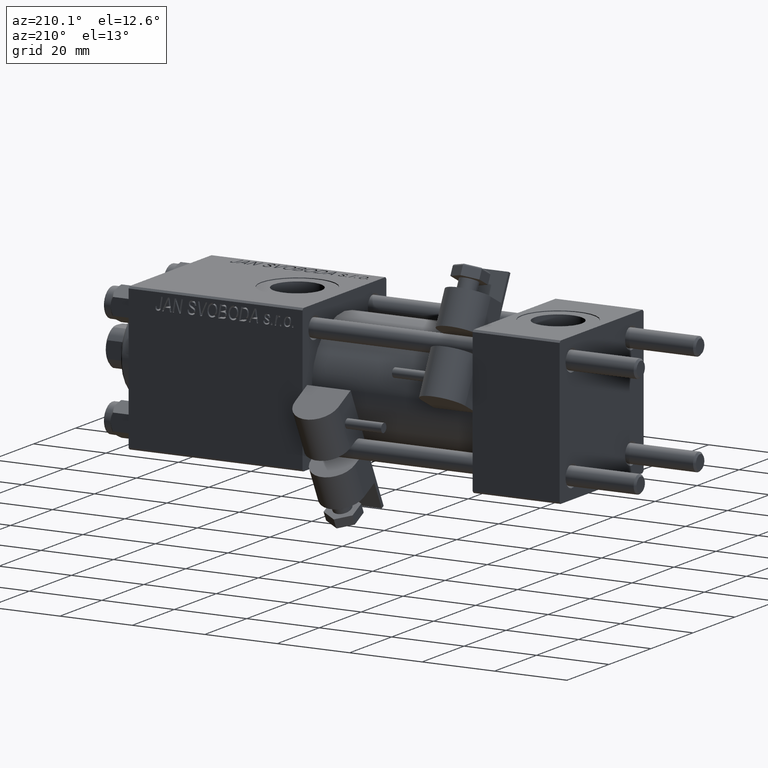
[diagram: clean part render]
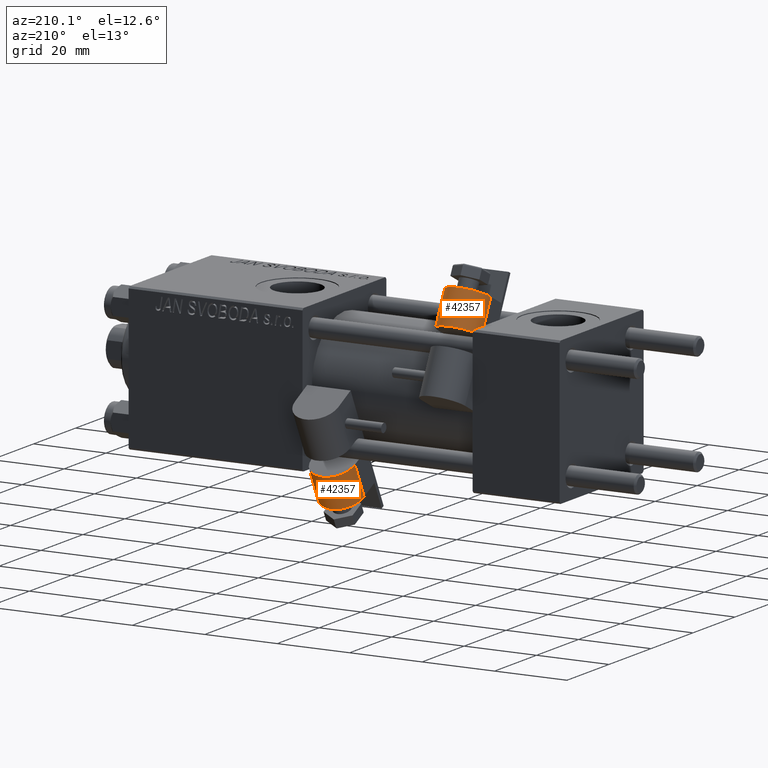
[diagram: same view with one multi-face feature highlighted, each face labeled with its STEP entity id]
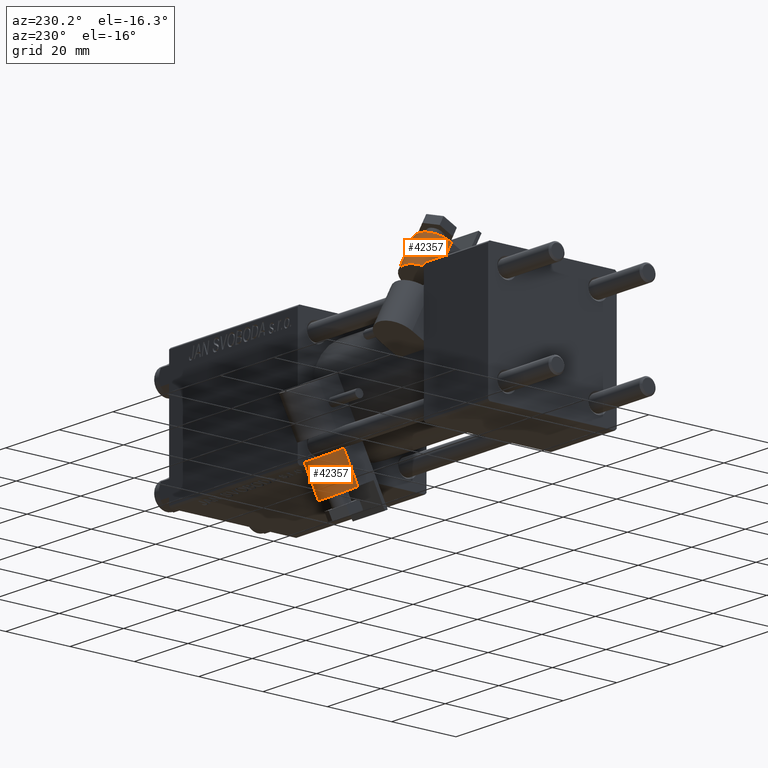
[diagram: same view with one multi-face feature highlighted, each face labeled with its STEP entity id]
A machine part, auxiliary view. The highlighted faces form ONE feature: a constant-radius fillet chain: 2 tangent blend faces with common blend radius 6 mm. The faces share edges in the B-rep.
A second angle (auxiliary view) of the same feature is appended — it is thin or edge-on in the first view.
Their STEP definitions:
[1] entity #42357 (Cylinder):
#662 = CARTESIAN_POINT ( 'NONE',  ( 9.740000000000000213, 6.500000000000000000, -5.999999999999997335 ) ) ;
#1658 = CARTESIAN_POINT ( 'NONE',  ( 0.000000000000000000, 6.500000000000000000, -5.999999999999997335 ) ) ;
#4240 = CARTESIAN_POINT ( 'NONE',  ( 9.740000000000000213, 6.499999999999999112, 1.734723475976807094E-15 ) ) ;
#5421 = ORIENTED_EDGE ( 'NONE', *, *, #31918, .T. ) ;
#6060 = EDGE_CURVE ( 'NONE', #19384, #6879, #48419, .T. ) ;
#6114 = CIRCLE ( 'NONE', #18449, 5.999999999999998224 ) ;
#6855 = AXIS2_PLACEMENT_3D ( 'NONE', #4240, #43836, #19440 ) ;
#6879 = VERTEX_POINT ( 'NONE', #28106 ) ;
#8356 = EDGE_CURVE ( 'NONE', #28830, #6879, #6114, .T. ) ;
#13187 = CARTESIAN_POINT ( 'NONE',  ( 9.740000000000000213, 6.500000000000000000, -5.999999999999997335 ) ) ;
#13515 = CARTESIAN_POINT ( 'NONE',  ( 9.740000000000000213, 6.499999999999999112, 1.734723475976807094E-15 ) ) ;
#15070 = VECTOR ( 'NONE', #25259, 1000.000000000000000 ) ;
#15282 = DIRECTION ( 'NONE',  ( 1.000000000000000000, 0.000000000000000000, 0.000000000000000000 ) ) ;
#18449 = AXIS2_PLACEMENT_3D ( 'NONE', #42778, #15282, #27607 ) ;
#19384 = VERTEX_POINT ( 'NONE', #23298 ) ;
#19440 = DIRECTION ( 'NONE',  ( 0.000000000000000000, 0.000000000000000000, -1.000000000000000000 ) ) ;
#21876 = ORIENTED_EDGE ( 'NONE', *, *, #38406, .F. ) ;
#23298 = CARTESIAN_POINT ( 'NONE',  ( 9.740000000000000213, 6.499999999999998224, 6.000000000000000000 ) ) ;
#25259 = DIRECTION ( 'NONE',  ( -1.000000000000000000, -0.000000000000000000, -0.000000000000000000 ) ) ;
#25570 = DIRECTION ( 'NONE',  ( -1.000000000000000000, -0.000000000000000000, -0.000000000000000000 ) ) ;
#26075 = CYLINDRICAL_SURFACE ( 'NONE', #28390, 5.999999999999998224 ) ;
#27607 = DIRECTION ( 'NONE',  ( 0.000000000000000000, 0.000000000000000000, -1.000000000000000000 ) ) ;
#27693 = ORIENTED_EDGE ( 'NONE', *, *, #6060, .F. ) ;
#28106 = CARTESIAN_POINT ( 'NONE',  ( 0.000000000000000000, 6.499999999999998224, 6.000000000000000000 ) ) ;
#28390 = AXIS2_PLACEMENT_3D ( 'NONE', #13515, #25570, #37133 ) ;
#28830 = VERTEX_POINT ( 'NONE', #1658 ) ;
#31918 = EDGE_CURVE ( 'NONE', #36802, #28830, #36893, .T. ) ;
#34507 = EDGE_LOOP ( 'NONE', ( #45191, #27693, #21876, #5421 ) ) ;
#36802 = VERTEX_POINT ( 'NONE', #13187 ) ;
#36893 = LINE ( 'NONE', #662, #38669 ) ;
#37133 = DIRECTION ( 'NONE',  ( 0.000000000000000000, 0.000000000000000000, 1.000000000000000000 ) ) ;
#38406 = EDGE_CURVE ( 'NONE', #36802, #19384, #42980, .T. ) ;
#38669 = VECTOR ( 'NONE', #43845, 1000.000000000000000 ) ;
#40439 = CARTESIAN_POINT ( 'NONE',  ( 9.740000000000000213, 6.499999999999998224, 6.000000000000000000 ) ) ;
#41756 = FACE_OUTER_BOUND ( 'NONE', #34507, .T. ) ;
#42357 = ADVANCED_FACE ( 'NONE', ( #41756 ), #26075, .T. ) ;
#42778 = CARTESIAN_POINT ( 'NONE',  ( 0.000000000000000000, 6.499999999999999112, 1.734723475976807094E-15 ) ) ;
#42980 = CIRCLE ( 'NONE', #6855, 5.999999999999998224 ) ;
#43836 = DIRECTION ( 'NONE',  ( 1.000000000000000000, 0.000000000000000000, 0.000000000000000000 ) ) ;
#43845 = DIRECTION ( 'NONE',  ( -1.000000000000000000, -0.000000000000000000, -0.000000000000000000 ) ) ;
#45191 = ORIENTED_EDGE ( 'NONE', *, *, #8356, .T. ) ;
#48419 = LINE ( 'NONE', #40439, #15070 ) ;
[2] entity #42357 (Cylinder):
#662 = CARTESIAN_POINT ( 'NONE',  ( 9.740000000000000213, 6.500000000000000000, -5.999999999999997335 ) ) ;
#1658 = CARTESIAN_POINT ( 'NONE',  ( 0.000000000000000000, 6.500000000000000000, -5.999999999999997335 ) ) ;
#4240 = CARTESIAN_POINT ( 'NONE',  ( 9.740000000000000213, 6.499999999999999112, 1.734723475976807094E-15 ) ) ;
#5421 = ORIENTED_EDGE ( 'NONE', *, *, #31918, .T. ) ;
#6060 = EDGE_CURVE ( 'NONE', #19384, #6879, #48419, .T. ) ;
#6114 = CIRCLE ( 'NONE', #18449, 5.999999999999998224 ) ;
#6855 = AXIS2_PLACEMENT_3D ( 'NONE', #4240, #43836, #19440 ) ;
#6879 = VERTEX_POINT ( 'NONE', #28106 ) ;
#8356 = EDGE_CURVE ( 'NONE', #28830, #6879, #6114, .T. ) ;
#13187 = CARTESIAN_POINT ( 'NONE',  ( 9.740000000000000213, 6.500000000000000000, -5.999999999999997335 ) ) ;
#13515 = CARTESIAN_POINT ( 'NONE',  ( 9.740000000000000213, 6.499999999999999112, 1.734723475976807094E-15 ) ) ;
#15070 = VECTOR ( 'NONE', #25259, 1000.000000000000000 ) ;
#15282 = DIRECTION ( 'NONE',  ( 1.000000000000000000, 0.000000000000000000, 0.000000000000000000 ) ) ;
#18449 = AXIS2_PLACEMENT_3D ( 'NONE', #42778, #15282, #27607 ) ;
#19384 = VERTEX_POINT ( 'NONE', #23298 ) ;
#19440 = DIRECTION ( 'NONE',  ( 0.000000000000000000, 0.000000000000000000, -1.000000000000000000 ) ) ;
#21876 = ORIENTED_EDGE ( 'NONE', *, *, #38406, .F. ) ;
#23298 = CARTESIAN_POINT ( 'NONE',  ( 9.740000000000000213, 6.499999999999998224, 6.000000000000000000 ) ) ;
#25259 = DIRECTION ( 'NONE',  ( -1.000000000000000000, -0.000000000000000000, -0.000000000000000000 ) ) ;
#25570 = DIRECTION ( 'NONE',  ( -1.000000000000000000, -0.000000000000000000, -0.000000000000000000 ) ) ;
#26075 = CYLINDRICAL_SURFACE ( 'NONE', #28390, 5.999999999999998224 ) ;
#27607 = DIRECTION ( 'NONE',  ( 0.000000000000000000, 0.000000000000000000, -1.000000000000000000 ) ) ;
#27693 = ORIENTED_EDGE ( 'NONE', *, *, #6060, .F. ) ;
#28106 = CARTESIAN_POINT ( 'NONE',  ( 0.000000000000000000, 6.499999999999998224, 6.000000000000000000 ) ) ;
#28390 = AXIS2_PLACEMENT_3D ( 'NONE', #13515, #25570, #37133 ) ;
#28830 = VERTEX_POINT ( 'NONE', #1658 ) ;
#31918 = EDGE_CURVE ( 'NONE', #36802, #28830, #36893, .T. ) ;
#34507 = EDGE_LOOP ( 'NONE', ( #45191, #27693, #21876, #5421 ) ) ;
#36802 = VERTEX_POINT ( 'NONE', #13187 ) ;
#36893 = LINE ( 'NONE', #662, #38669 ) ;
#37133 = DIRECTION ( 'NONE',  ( 0.000000000000000000, 0.000000000000000000, 1.000000000000000000 ) ) ;
#38406 = EDGE_CURVE ( 'NONE', #36802, #19384, #42980, .T. ) ;
#38669 = VECTOR ( 'NONE', #43845, 1000.000000000000000 ) ;
#40439 = CARTESIAN_POINT ( 'NONE',  ( 9.740000000000000213, 6.499999999999998224, 6.000000000000000000 ) ) ;
#41756 = FACE_OUTER_BOUND ( 'NONE', #34507, .T. ) ;
#42357 = ADVANCED_FACE ( 'NONE', ( #41756 ), #26075, .T. ) ;
#42778 = CARTESIAN_POINT ( 'NONE',  ( 0.000000000000000000, 6.499999999999999112, 1.734723475976807094E-15 ) ) ;
#42980 = CIRCLE ( 'NONE', #6855, 5.999999999999998224 ) ;
#43836 = DIRECTION ( 'NONE',  ( 1.000000000000000000, 0.000000000000000000, 0.000000000000000000 ) ) ;
#43845 = DIRECTION ( 'NONE',  ( -1.000000000000000000, -0.000000000000000000, -0.000000000000000000 ) ) ;
#45191 = ORIENTED_EDGE ( 'NONE', *, *, #8356, .T. ) ;
#48419 = LINE ( 'NONE', #40439, #15070 ) ;